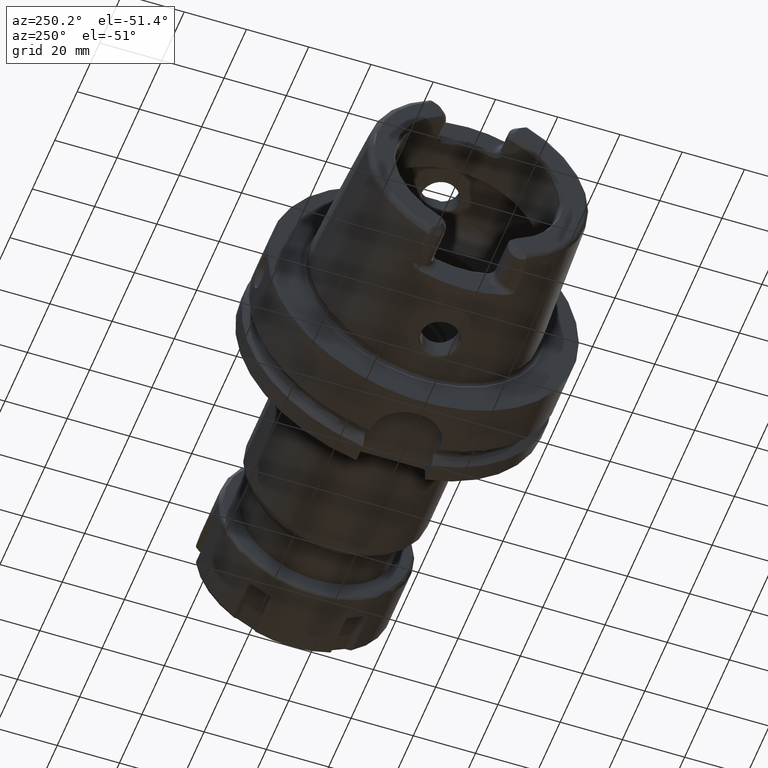
[diagram: clean part render]
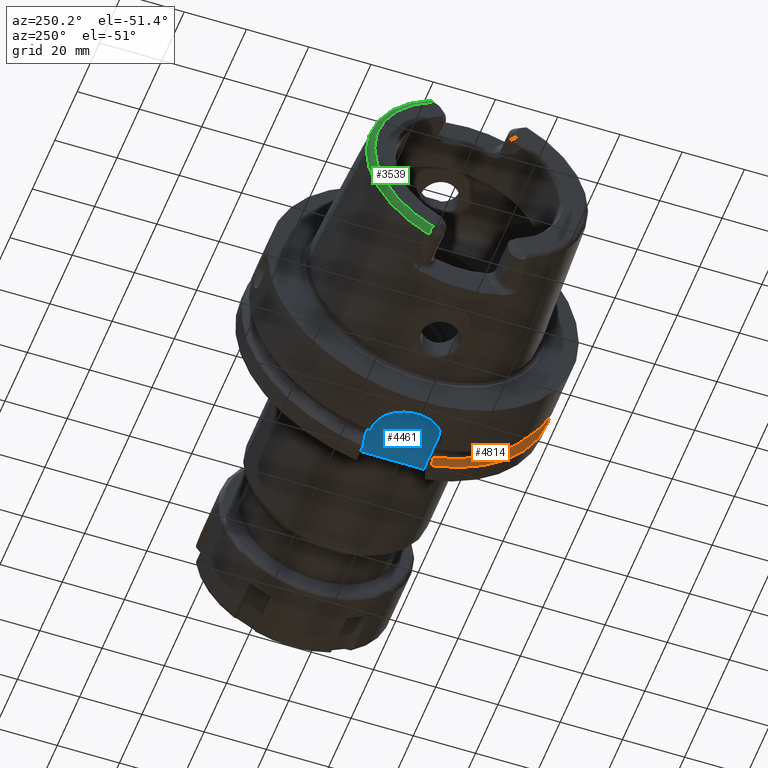
[diagram: same view with three faces highlighted in distinct colors, each labeled with its STEP entity id]
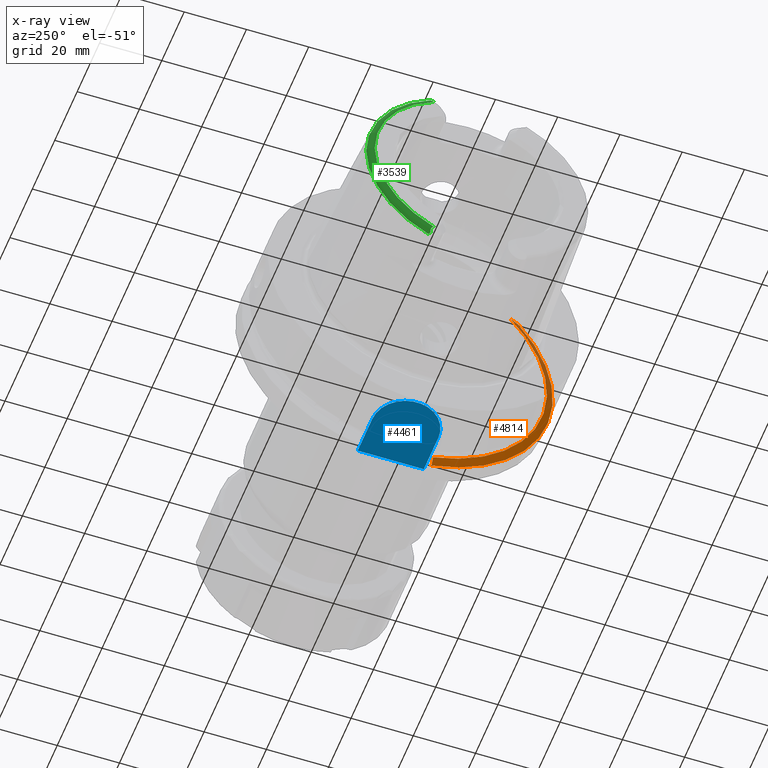
[diagram: x-ray of the same camera — body ghosted, the three highlighted faces saturated]
A machine part, auxiliary view with three faces highlighted in distinct colors.
The next image is the same camera in x-ray (body ghosted, the three faces saturated) — at least one of them is partly hidden behind the body in this view.
Their STEP definitions:

[orange] entity #4814 — the highlighted conical surface has half-angle 60 deg.
#1651=CARTESIAN_POINT('',(2.1875E1,-3.584813913855E1,3.135E1));
#1652=CARTESIAN_POINT('',(2.201926909979E1,-3.618009503853E1,3.135E1));
#1653=CARTESIAN_POINT('',(2.231325601243E1,-3.685254281008E1,3.135E1));
#1654=CARTESIAN_POINT('',(2.277013394908E1,-3.788549989558E1,3.135E1));
#1655=CARTESIAN_POINT('',(2.308652311591E1,-3.859283920663E1,3.135E1));
#1656=CARTESIAN_POINT('',(2.324759526419E1,-3.895096276089E1,3.135E1));
#1658=CARTESIAN_POINT('',(2.324759526419E1,0.E0,0.E0));
#1659=DIRECTION('',(1.E0,0.E0,0.E0));
#1660=DIRECTION('',(0.E0,-7.790192552177E-1,6.27E-1));
#1661=AXIS2_PLACEMENT_3D('',#1658,#1659,#1660);
#1663=CARTESIAN_POINT('',(2.1875E1,-1.1021E1,-4.632978673270E1));
#1664=CARTESIAN_POINT('',(2.202318225848E1,-1.1021E1,-4.659360787426E1));
#1665=CARTESIAN_POINT('',(2.232243073507E1,-1.1021E1,-4.712614327506E1));
#1666=CARTESIAN_POINT('',(2.277987830991E1,-1.1021E1,-4.793948430950E1));
#1667=CARTESIAN_POINT('',(2.309071894781E1,-1.1021E1,-4.849168366555E1));
#1668=CARTESIAN_POINT('',(2.324759526419E1,-1.1021E1,-4.877025280845E1));
#1670=CARTESIAN_POINT('',(2.1875E1,0.E0,0.E0));
#1671=DIRECTION('',(-1.E0,0.E0,0.E0));
#1672=DIRECTION('',(0.E0,-2.314237588031E-1,-9.728530433017E-1));
#1673=AXIS2_PLACEMENT_3D('',#1670,#1671,#1672);
#3090=CARTESIAN_POINT('',(2.1875E1,-1.1021E1,-4.632978673270E1));
#3091=VERTEX_POINT('',#3090);
#3093=VERTEX_POINT('',#1668);
#3142=CARTESIAN_POINT('',(2.1875E1,-3.584813913855E1,3.135E1));
#3143=VERTEX_POINT('',#3142);
#3146=VERTEX_POINT('',#1656);
#4802=CARTESIAN_POINT('',(2.256129763210E1,0.E0,0.E0));
#4803=DIRECTION('',(1.E0,0.E0,0.E0));
#4804=DIRECTION('',(0.E0,-1.E0,0.E0));
#4805=AXIS2_PLACEMENT_3D('',#4802,#4803,#4804);
#4806=CONICAL_SURFACE('',#4805,4.881129763210E1,6.E1);
#4808=ORIENTED_EDGE('',*,*,#4807,.T.);
#4809=ORIENTED_EDGE('',*,*,#4338,.T.);
#4810=ORIENTED_EDGE('',*,*,#4510,.F.);
#4811=ORIENTED_EDGE('',*,*,#4767,.T.);
#4812=EDGE_LOOP('',(#4808,#4809,#4810,#4811));
#4813=FACE_OUTER_BOUND('',#4812,.F.);
#4814=ADVANCED_FACE('',(#4813),#4806,.T.);
#1657=B_SPLINE_CURVE_WITH_KNOTS('',3,(#1651,#1652,#1653,#1654,#1655,#1656),
.UNSPECIFIED.,.F.,.F.,(4,1,1,4),(0.E0,3.333333333333E-1,6.666666666667E-1,1.E0),
.UNSPECIFIED.);
#1662=CIRCLE('',#1661,5.E1);
#1669=B_SPLINE_CURVE_WITH_KNOTS('',3,(#1663,#1664,#1665,#1666,#1667,#1668),
.UNSPECIFIED.,.F.,.F.,(4,1,1,4),(0.E0,3.333333333333E-1,6.666666666667E-1,1.E0),
.UNSPECIFIED.);
#1674=CIRCLE('',#1673,4.762259526419E1);
#4338=EDGE_CURVE('',#3146,#3093,#1662,.T.);
#4510=EDGE_CURVE('',#3091,#3093,#1669,.T.);
#4767=EDGE_CURVE('',#3091,#3143,#1674,.T.);
#4807=EDGE_CURVE('',#3143,#3146,#1657,.T.);

[blue] entity #4461 — the highlighted planar face has unit normal (0, 0, -1).
#1206=DIRECTION('',(0.E0,-1.E0,0.E0));
#1207=VECTOR('',#1206,2.1242E1);
#1208=CARTESIAN_POINT('',(2.9E1,1.0621E1,-4.39E1));
#1209=LINE('',#1208,#1207);
#1236=DIRECTION('',(1.E0,7.972170608913E-10,7.962299687492E-10));
#1237=VECTOR('',#1236,1.302899999832E1);
#1238=CARTESIAN_POINT('',(1.597100000168E1,1.062099998961E1,-4.390000001037E1));
#1239=LINE('',#1238,#1237);
#1240=CARTESIAN_POINT('',(1.5971E1,-6.217248937901E-14,-4.389999976660E1));
#1241=DIRECTION('',(0.E0,0.E0,-1.E0));
#1242=DIRECTION('',(0.E0,-1.E0,0.E0));
#1243=AXIS2_PLACEMENT_3D('',#1240,#1241,#1242);
#1245=DIRECTION('',(-1.E0,7.972958646615E-10,-7.961481655383E-10));
#1246=VECTOR('',#1245,1.302899999824E1);
#1247=CARTESIAN_POINT('',(2.9E1,-1.0621E1,-4.39E1));
#1248=LINE('',#1247,#1246);
#3021=CARTESIAN_POINT('',(2.9E1,-1.0621E1,-4.39E1));
#3023=VERTEX_POINT('',#3021);
#3024=CARTESIAN_POINT('',(2.9E1,1.0621E1,-4.39E1));
#3026=VERTEX_POINT('',#3024);
#3096=CARTESIAN_POINT('',(1.597100000168E1,1.062099998961E1,-4.390000001037E1));
#3097=VERTEX_POINT('',#3096);
#3098=CARTESIAN_POINT('',(1.597100000176E1,-1.062099998961E1,
-4.390000001037E1));
#3099=VERTEX_POINT('',#3098);
#4448=CARTESIAN_POINT('',(0.E0,0.E0,-4.39E1));
#4449=DIRECTION('',(0.E0,0.E0,-1.E0));
#4450=DIRECTION('',(1.E0,0.E0,0.E0));
#4451=AXIS2_PLACEMENT_3D('',#4448,#4449,#4450);
#4452=PLANE('',#4451);
#4453=ORIENTED_EDGE('',*,*,#4409,.F.);
#4455=ORIENTED_EDGE('',*,*,#4454,.F.);
#4457=ORIENTED_EDGE('',*,*,#4456,.F.);
#4458=ORIENTED_EDGE('',*,*,#4421,.F.);
#4459=EDGE_LOOP('',(#4453,#4455,#4457,#4458));
#4460=FACE_OUTER_BOUND('',#4459,.F.);
#4461=ADVANCED_FACE('',(#4460),#4452,.T.);
#1244=CIRCLE('',#1243,1.062099970432E1);
#4409=EDGE_CURVE('',#3097,#3026,#1239,.T.);
#4421=EDGE_CURVE('',#3026,#3023,#1209,.T.);
#4454=EDGE_CURVE('',#3099,#3097,#1244,.T.);
#4456=EDGE_CURVE('',#3023,#3099,#1248,.T.);

[green] entity #3539 — the highlighted toroidal blend (fillet) surface has major radius 33.6002 mm and minor (blend) radius 2 mm.
#284=CARTESIAN_POINT('',(-4.885415732441E1,1.524233599545E1,-3.196E1));
#285=CARTESIAN_POINT('',(-4.892042682917E1,1.528184575722E1,-3.190647917074E1));
#286=CARTESIAN_POINT('',(-4.904907337055E1,1.534921107261E1,-3.179688001462E1));
#287=CARTESIAN_POINT('',(-4.923089295558E1,1.541590864687E1,-3.162456500561E1));
#288=CARTESIAN_POINT('',(-4.939996141290E1,1.544678596655E1,-3.144531182725E1));
#289=CARTESIAN_POINT('',(-4.955291678113E1,1.544062482823E1,-3.126231590503E1));
#290=CARTESIAN_POINT('',(-4.968961398491E1,1.539492909283E1,-3.107422253444E1));
#291=CARTESIAN_POINT('',(-4.980222556701E1,1.531137807264E1,-3.089122966690E1));
#292=CARTESIAN_POINT('',(-4.98920182E1,1.518913217588E1,-3.071134017670E1));
#293=CARTESIAN_POINT('',(-4.995490319930E1,1.503380242251E1,-3.054277251898E1));
#294=CARTESIAN_POINT('',(-4.999193874033E1,1.484926520259E1,-3.038665452223E1));
#295=CARTESIAN_POINT('',(-5.E1,1.470886141623E1,-3.029144627288E1));
#296=CARTESIAN_POINT('',(-5.E1,1.463423248617E1,-3.024586108239E1));
#298=CARTESIAN_POINT('',(-4.810007448473E1,1.567653238626E1,-3.196E1));
#299=CARTESIAN_POINT('',(-4.814854926161E1,1.567101764283E1,-3.196E1));
#300=CARTESIAN_POINT('',(-4.824699718528E1,1.565188578280E1,-3.196E1));
#301=CARTESIAN_POINT('',(-4.840101233225E1,1.559467216883E1,-3.196E1));
#302=CARTESIAN_POINT('',(-4.855439166438E1,1.550852477714E1,-3.196E1));
#303=CARTESIAN_POINT('',(-4.870516089830E1,1.539385143023E1,-3.196E1));
#304=CARTESIAN_POINT('',(-4.880487439669E1,1.529641023181E1,-3.196E1));
#305=CARTESIAN_POINT('',(-4.885415732441E1,1.524233599545E1,-3.196E1));
#307=CARTESIAN_POINT('',(-4.810007448473E1,0.E0,0.E0));
#308=DIRECTION('',(-1.E0,0.E0,0.E0));
#309=DIRECTION('',(0.E0,1.E0,0.E0));
#310=AXIS2_PLACEMENT_3D('',#307,#308,#309);
#312=CARTESIAN_POINT('',(-4.810007448473E1,0.E0,0.E0));
#313=DIRECTION('',(1.E0,0.E0,0.E0));
#314=DIRECTION('',(0.E0,1.E0,0.E0));
#315=AXIS2_PLACEMENT_3D('',#312,#313,#314);
#317=CARTESIAN_POINT('',(-4.885415732441E1,1.524233599545E1,3.196E1));
#318=CARTESIAN_POINT('',(-4.880489671373E1,1.529638574510E1,3.196E1));
#319=CARTESIAN_POINT('',(-4.870522589790E1,1.539380534287E1,3.196E1));
#320=CARTESIAN_POINT('',(-4.855425205604E1,1.550861743949E1,3.196E1));
#321=CARTESIAN_POINT('',(-4.840102922174E1,1.559466231398E1,3.196E1));
#322=CARTESIAN_POINT('',(-4.824685927015E1,1.565193052527E1,3.196E1));
#323=CARTESIAN_POINT('',(-4.814849310230E1,1.567102403180E1,3.196E1));
#324=CARTESIAN_POINT('',(-4.810007448473E1,1.567653238626E1,3.196E1));
#326=CARTESIAN_POINT('',(-5.E1,1.463423248617E1,3.024586108239E1));
#327=CARTESIAN_POINT('',(-5.E1,1.470887052533E1,3.029145183695E1));
#328=CARTESIAN_POINT('',(-4.999193668301E1,1.484929336697E1,3.038667413649E1));
#329=CARTESIAN_POINT('',(-4.995488930905E1,1.503385996795E1,3.054282394569E1));
#330=CARTESIAN_POINT('',(-4.989197500232E1,1.518921649175E1,3.071144229779E1));
#331=CARTESIAN_POINT('',(-4.980215470263E1,1.531145218524E1,3.089135797532E1));
#332=CARTESIAN_POINT('',(-4.968951481558E1,1.539498007461E1,3.107436988164E1));
#333=CARTESIAN_POINT('',(-4.955280820452E1,1.544064650585E1,3.126245637594E1));
#334=CARTESIAN_POINT('',(-4.939976008409E1,1.544677878772E1,3.144554335861E1));
#335=CARTESIAN_POINT('',(-4.923056226109E1,1.541582067272E1,3.162489877544E1));
#336=CARTESIAN_POINT('',(-4.904873698401E1,1.534905210810E1,3.179717709171E1));
#337=CARTESIAN_POINT('',(-4.892028850269E1,1.528176328722E1,3.190659088650E1));
#338=CARTESIAN_POINT('',(-4.885415732441E1,1.524233599545E1,3.196E1));
#340=CARTESIAN_POINT('',(-5.E1,0.E0,0.E0));
#341=DIRECTION('',(-1.E0,0.E0,0.E0));
#342=DIRECTION('',(0.E0,4.355401503799E-1,9.001693048572E-1));
#343=AXIS2_PLACEMENT_3D('',#340,#341,#342);
#2783=CARTESIAN_POINT('',(-4.810007448473E1,3.559768626831E1,0.E0));
#2784=VERTEX_POINT('',#2783);
#2823=CARTESIAN_POINT('',(-4.810007448473E1,1.567653238626E1,3.196E1));
#2824=VERTEX_POINT('',#2823);
#2855=CARTESIAN_POINT('',(-5.E1,1.463423248617E1,3.024586108239E1));
#2856=VERTEX_POINT('',#2855);
#2857=VERTEX_POINT('',#338);
#2903=CARTESIAN_POINT('',(-4.810007448473E1,1.567653238626E1,-3.196E1));
#2904=VERTEX_POINT('',#2903);
#2946=CARTESIAN_POINT('',(-5.E1,1.463423248617E1,-3.024586108239E1));
#2947=VERTEX_POINT('',#2946);
#2948=VERTEX_POINT('',#284);
#3521=CARTESIAN_POINT('',(-4.8E1,0.E0,0.E0));
#3522=DIRECTION('',(1.E0,0.E0,0.E0));
#3523=DIRECTION('',(0.E0,-1.E0,0.E0));
#3524=AXIS2_PLACEMENT_3D('',#3521,#3522,#3523);
#3525=TOROIDAL_SURFACE('',#3524,3.360019156306E1,2.E0);
#3527=ORIENTED_EDGE('',*,*,#3526,.F.);
#3529=ORIENTED_EDGE('',*,*,#3528,.F.);
#3531=ORIENTED_EDGE('',*,*,#3530,.F.);
#3532=ORIENTED_EDGE('',*,*,#3247,.T.);
#3534=ORIENTED_EDGE('',*,*,#3533,.F.);
#3535=ORIENTED_EDGE('',*,*,#3512,.F.);
#3536=ORIENTED_EDGE('',*,*,#3311,.T.);
#3537=EDGE_LOOP('',(#3527,#3529,#3531,#3532,#3534,#3535,#3536));
#3538=FACE_OUTER_BOUND('',#3537,.F.);
#3539=ADVANCED_FACE('',(#3538),#3525,.T.);
#297=B_SPLINE_CURVE_WITH_KNOTS('',3,(#284,#285,#286,#287,#288,#289,#290,#291,
#292,#293,#294,#295,#296),.UNSPECIFIED.,.F.,.F.,(4,1,1,1,1,1,1,1,1,1,4),(0.E0,
1.E-1,2.E-1,3.E-1,4.E-1,5.E-1,6.E-1,7.E-1,8.E-1,9.E-1,1.E0),.UNSPECIFIED.);
#306=B_SPLINE_CURVE_WITH_KNOTS('',3,(#298,#299,#300,#301,#302,#303,#304,#305),
.UNSPECIFIED.,.F.,.F.,(4,1,1,1,1,4),(0.E0,2.E-1,4.E-1,6.E-1,8.E-1,1.E0),
.UNSPECIFIED.);
#311=CIRCLE('',#310,3.559768626831E1);
#316=CIRCLE('',#315,3.559768626831E1);
#325=B_SPLINE_CURVE_WITH_KNOTS('',3,(#317,#318,#319,#320,#321,#322,#323,#324),
.UNSPECIFIED.,.F.,.F.,(4,1,1,1,1,4),(0.E0,2.E-1,4.E-1,6.E-1,8.E-1,1.E0),
.UNSPECIFIED.);
#339=B_SPLINE_CURVE_WITH_KNOTS('',3,(#326,#327,#328,#329,#330,#331,#332,#333,
#334,#335,#336,#337,#338),.UNSPECIFIED.,.F.,.F.,(4,1,1,1,1,1,1,1,1,1,4),(0.E0,
1.E-1,2.E-1,3.E-1,4.E-1,5.E-1,6.E-1,7.E-1,8.E-1,9.E-1,1.E0),.UNSPECIFIED.);
#344=CIRCLE('',#343,3.360019156306E1);
#3247=EDGE_CURVE('',#2784,#2824,#316,.T.);
#3311=EDGE_CURVE('',#2856,#2947,#344,.T.);
#3512=EDGE_CURVE('',#2856,#2857,#339,.T.);
#3526=EDGE_CURVE('',#2948,#2947,#297,.T.);
#3528=EDGE_CURVE('',#2904,#2948,#306,.T.);
#3530=EDGE_CURVE('',#2784,#2904,#311,.T.);
#3533=EDGE_CURVE('',#2857,#2824,#325,.T.);